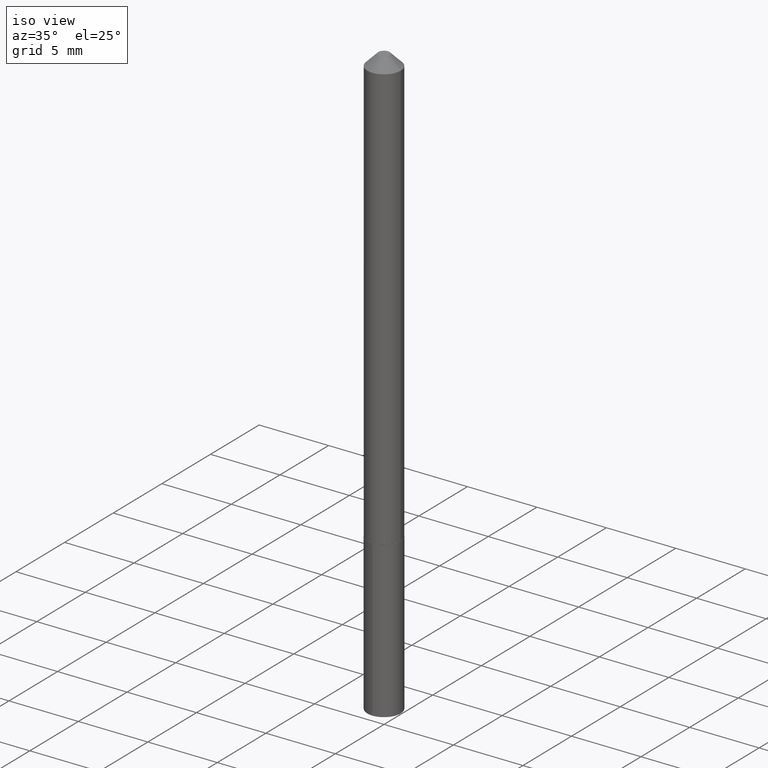
[diagram: clean part render]
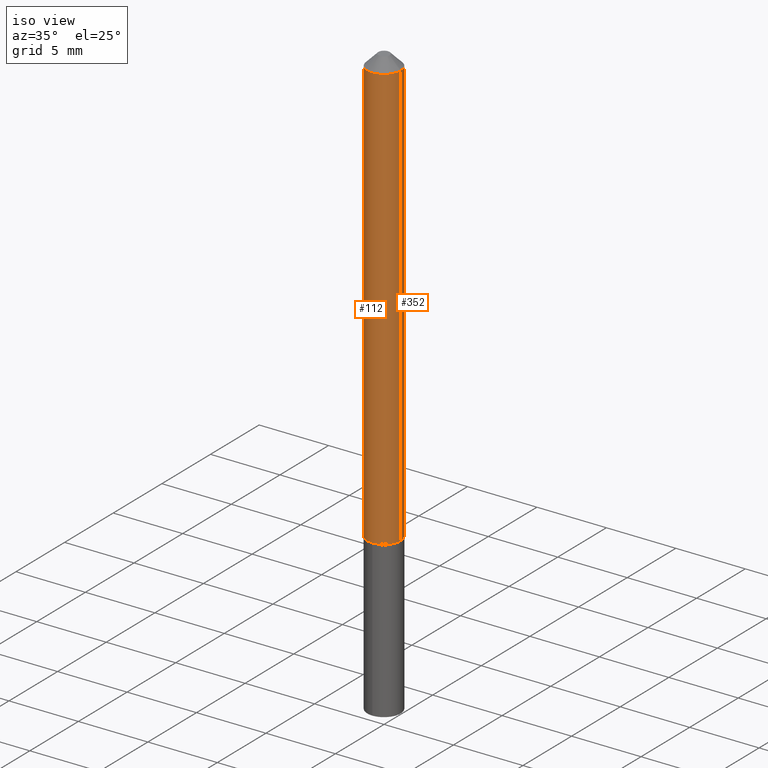
[diagram: same view with one multi-face feature highlighted, each face labeled with its STEP entity id]
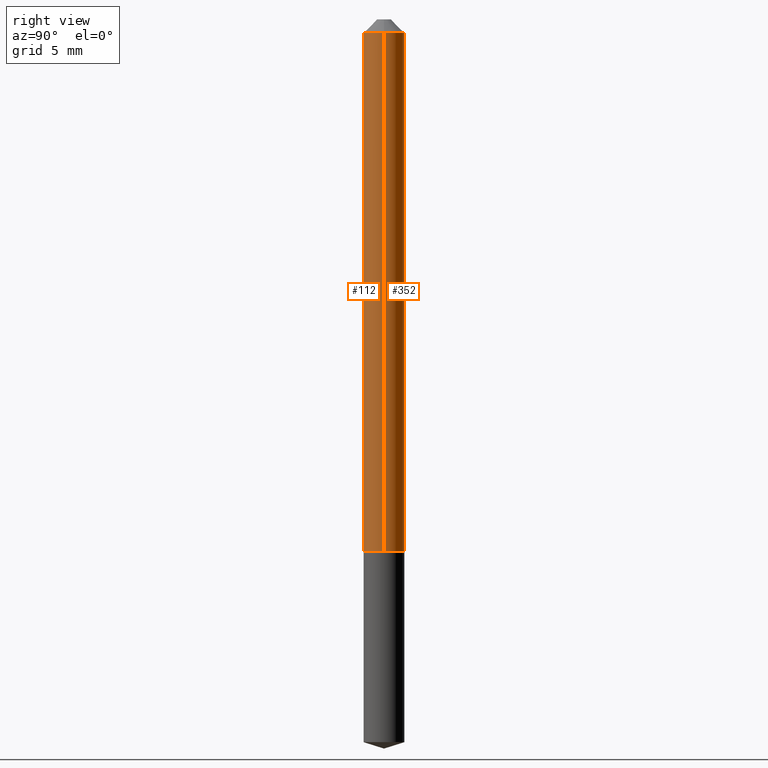
[diagram: same view with one multi-face feature highlighted, each face labeled with its STEP entity id]
A machine part, iso view. The highlighted faces form ONE feature: a constant-radius fillet chain: 2 tangent blend faces with common blend radius 1.2002 mm. The faces share edges in the B-rep.
A second angle (right view) of the same feature is appended — it is thin or edge-on in the first view.
Their STEP definitions:
[1] entity #112 (Cylinder):
#40 = EDGE_CURVE ( 'NONE', #345, #107, #282, .T. ) ;
#60 = VERTEX_POINT ( 'NONE', #267 ) ;
#67 = LINE ( 'NONE', #155, #367 ) ;
#76 = ORIENTED_EDGE ( 'NONE', *, *, #365, .F. ) ;
#88 = CARTESIAN_POINT ( 'NONE',  ( 0.04725000000000000727, -4.390537783595251574E-16, -0.03125000000000020817 ) ) ;
#101 = DIRECTION ( 'NONE',  ( -2.445468806185136877E-29, 3.491481338843145188E-15, 1.000000000000000000 ) ) ;
#103 = DIRECTION ( 'NONE',  ( 1.000000000000000000, -6.982962677686264344E-15, 0.000000000000000000 ) ) ;
#107 = VERTEX_POINT ( 'NONE', #88 ) ;
#109 = CARTESIAN_POINT ( 'NONE',  ( 0.000000000000000000, 0.000000000000000000, 0.000000000000000000 ) ) ;
#112 = ADVANCED_FACE ( 'NONE', ( #215 ), #169, .T. ) ;
#119 = CARTESIAN_POINT ( 'NONE',  ( 7.642090019328602662E-31, -1.091087918388490267E-16, -0.03125000000000020817 ) ) ;
#155 = CARTESIAN_POINT ( 'NONE',  ( 0.04725000000000006972, -3.299449865206765991E-16, 2.303993526563583334E-30 ) ) ;
#164 = AXIS2_PLACEMENT_3D ( 'NONE', #119, #364, #355 ) ;
#165 = CIRCLE ( 'NONE', #361, 0.04725000000000015299 ) ;
#169 = CYLINDRICAL_SURFACE ( 'NONE', #382, 0.04725000000000006972 ) ;
#194 = DIRECTION ( 'NONE',  ( -2.445468806185136877E-29, 3.491481338843145188E-15, 1.000000000000000000 ) ) ;
#207 = ORIENTED_EDGE ( 'NONE', *, *, #316, .T. ) ;
#209 = DIRECTION ( 'NONE',  ( -2.445468806185136597E-29, 3.491481338843145583E-15, 1.000000000000000000 ) ) ;
#215 = FACE_OUTER_BOUND ( 'NONE', #353, .T. ) ;
#238 = VECTOR ( 'NONE', #101, 39.37007874015748143 ) ;
#246 = EDGE_CURVE ( 'NONE', #60, #107, #67, .T. ) ;
#257 = LINE ( 'NONE', #377, #238 ) ;
#259 = ORIENTED_EDGE ( 'NONE', *, *, #40, .F. ) ;
#260 = ORIENTED_EDGE ( 'NONE', *, *, #246, .T. ) ;
#267 = CARTESIAN_POINT ( 'NONE',  ( 0.04725000000000015299, -4.644368476929153477E-15, -1.235700000000000465 ) ) ;
#282 = CIRCLE ( 'NONE', #164, 0.04725000000000000727 ) ;
#287 = CARTESIAN_POINT ( 'NONE',  ( -0.04725000000000000727, -1.876034698477013480E-15, -0.03125000000000020817 ) ) ;
#305 = VERTEX_POINT ( 'NONE', #347 ) ;
#316 = EDGE_CURVE ( 'NONE', #305, #60, #165, .T. ) ;
#328 = CARTESIAN_POINT ( 'NONE',  ( 3.021865803802974359E-29, -4.314423490408476680E-15, -1.235700000000000465 ) ) ;
#345 = VERTEX_POINT ( 'NONE', #287 ) ;
#347 = CARTESIAN_POINT ( 'NONE',  ( -0.04725000000000015299, -3.978692047761827664E-15, -1.235700000000000465 ) ) ;
#350 = DIRECTION ( 'NONE',  ( 1.000000000000000000, -6.982962677686266711E-15, 4.876176775795936353E-29 ) ) ;
#353 = EDGE_LOOP ( 'NONE', ( #76, #207, #260, #259 ) ) ;
#355 = DIRECTION ( 'NONE',  ( 1.000000000000000000, -6.982962677686266711E-15, 0.000000000000000000 ) ) ;
#361 = AXIS2_PLACEMENT_3D ( 'NONE', #328, #209, #103 ) ;
#364 = DIRECTION ( 'NONE',  ( -2.445468806185136597E-29, 3.491481338843145583E-15, 1.000000000000000000 ) ) ;
#365 = EDGE_CURVE ( 'NONE', #305, #345, #257, .T. ) ;
#367 = VECTOR ( 'NONE', #194, 39.37007874015748143 ) ;
#376 = DIRECTION ( 'NONE',  ( -2.445468806185136597E-29, 3.491481338843145583E-15, 1.000000000000000000 ) ) ;
#377 = CARTESIAN_POINT ( 'NONE',  ( -0.04725000000000006972, 3.357314426466478332E-16, -2.324196830145446318E-30 ) ) ;
#382 = AXIS2_PLACEMENT_3D ( 'NONE', #109, #376, #350 ) ;
[2] entity #352 (Cylinder):
#16 = AXIS2_PLACEMENT_3D ( 'NONE', #216, #63, #243 ) ;
#59 = CYLINDRICAL_SURFACE ( 'NONE', #150, 0.04725000000000006972 ) ;
#60 = VERTEX_POINT ( 'NONE', #267 ) ;
#63 = DIRECTION ( 'NONE',  ( -2.445468806185136597E-29, 3.491481338843145583E-15, 1.000000000000000000 ) ) ;
#67 = LINE ( 'NONE', #155, #367 ) ;
#70 = ORIENTED_EDGE ( 'NONE', *, *, #89, .F. ) ;
#84 = ORIENTED_EDGE ( 'NONE', *, *, #246, .F. ) ;
#86 = DIRECTION ( 'NONE',  ( -2.445468806185136597E-29, 3.491481338843145583E-15, 1.000000000000000000 ) ) ;
#88 = CARTESIAN_POINT ( 'NONE',  ( 0.04725000000000000727, -4.390537783595251574E-16, -0.03125000000000020817 ) ) ;
#89 = EDGE_CURVE ( 'NONE', #107, #345, #388, .T. ) ;
#93 = CIRCLE ( 'NONE', #366, 0.04725000000000015299 ) ;
#98 = EDGE_CURVE ( 'NONE', #60, #305, #93, .T. ) ;
#101 = DIRECTION ( 'NONE',  ( -2.445468806185136877E-29, 3.491481338843145188E-15, 1.000000000000000000 ) ) ;
#107 = VERTEX_POINT ( 'NONE', #88 ) ;
#150 = AXIS2_PLACEMENT_3D ( 'NONE', #258, #196, #297 ) ;
#155 = CARTESIAN_POINT ( 'NONE',  ( 0.04725000000000006972, -3.299449865206765991E-16, 2.303993526563583334E-30 ) ) ;
#194 = DIRECTION ( 'NONE',  ( -2.445468806185136877E-29, 3.491481338843145188E-15, 1.000000000000000000 ) ) ;
#196 = DIRECTION ( 'NONE',  ( -2.445468806185136597E-29, 3.491481338843145583E-15, 1.000000000000000000 ) ) ;
#216 = CARTESIAN_POINT ( 'NONE',  ( 7.642090019328602662E-31, -1.091087918388490267E-16, -0.03125000000000020817 ) ) ;
#233 = ORIENTED_EDGE ( 'NONE', *, *, #98, .T. ) ;
#238 = VECTOR ( 'NONE', #101, 39.37007874015748143 ) ;
#240 = EDGE_LOOP ( 'NONE', ( #233, #275, #70, #84 ) ) ;
#243 = DIRECTION ( 'NONE',  ( 1.000000000000000000, -6.982962677686266711E-15, 0.000000000000000000 ) ) ;
#246 = EDGE_CURVE ( 'NONE', #60, #107, #67, .T. ) ;
#257 = LINE ( 'NONE', #377, #238 ) ;
#258 = CARTESIAN_POINT ( 'NONE',  ( 0.000000000000000000, 0.000000000000000000, 0.000000000000000000 ) ) ;
#267 = CARTESIAN_POINT ( 'NONE',  ( 0.04725000000000015299, -4.644368476929153477E-15, -1.235700000000000465 ) ) ;
#275 = ORIENTED_EDGE ( 'NONE', *, *, #365, .T. ) ;
#287 = CARTESIAN_POINT ( 'NONE',  ( -0.04725000000000000727, -1.876034698477013480E-15, -0.03125000000000020817 ) ) ;
#294 = FACE_OUTER_BOUND ( 'NONE', #240, .T. ) ;
#297 = DIRECTION ( 'NONE',  ( 1.000000000000000000, -6.982962677686266711E-15, 4.876176775795936353E-29 ) ) ;
#305 = VERTEX_POINT ( 'NONE', #347 ) ;
#335 = CARTESIAN_POINT ( 'NONE',  ( 3.021865803802974359E-29, -4.314423490408476680E-15, -1.235700000000000465 ) ) ;
#345 = VERTEX_POINT ( 'NONE', #287 ) ;
#347 = CARTESIAN_POINT ( 'NONE',  ( -0.04725000000000015299, -3.978692047761827664E-15, -1.235700000000000465 ) ) ;
#352 = ADVANCED_FACE ( 'NONE', ( #294 ), #59, .T. ) ;
#365 = EDGE_CURVE ( 'NONE', #305, #345, #257, .T. ) ;
#366 = AXIS2_PLACEMENT_3D ( 'NONE', #335, #86, #386 ) ;
#367 = VECTOR ( 'NONE', #194, 39.37007874015748143 ) ;
#377 = CARTESIAN_POINT ( 'NONE',  ( -0.04725000000000006972, 3.357314426466478332E-16, -2.324196830145446318E-30 ) ) ;
#386 = DIRECTION ( 'NONE',  ( 1.000000000000000000, -6.982962677686264344E-15, 0.000000000000000000 ) ) ;
#388 = CIRCLE ( 'NONE', #16, 0.04725000000000000727 ) ;